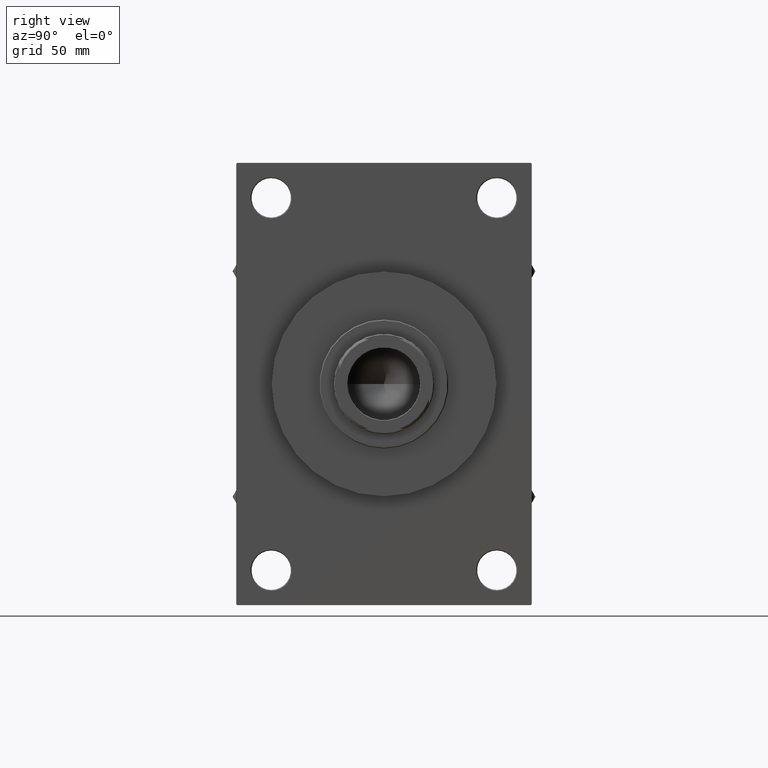
[diagram: clean part render]
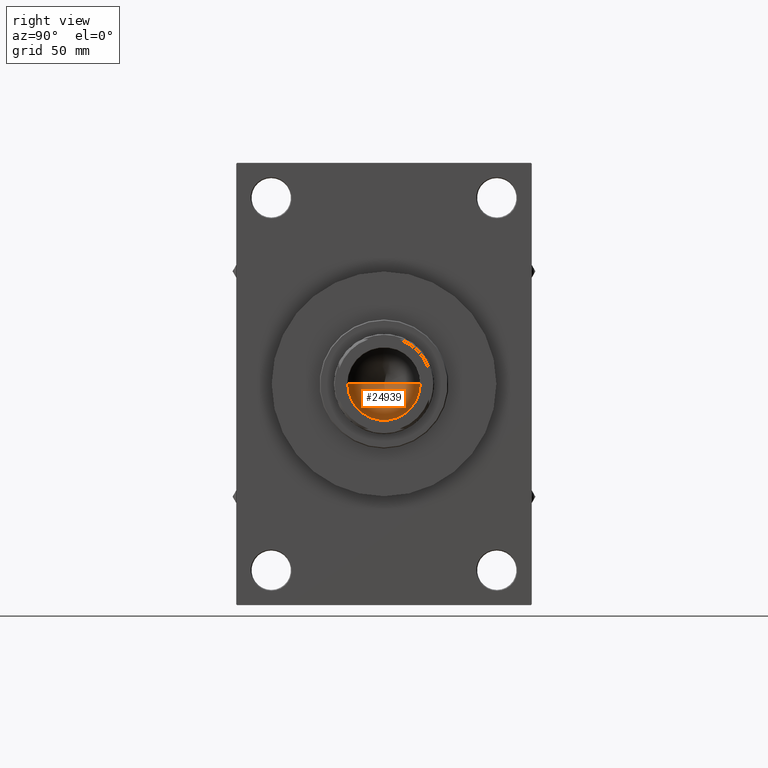
[diagram: same view with one face highlighted and labeled with its STEP entity id]
A machine part, right view. The second image highlights one B-rep face of the part: STEP entity #24939.
In plain terms, the highlighted conical surface has half-angle 59 deg.
Its self-contained STEP definition (entity closure, byte-faithful):
#1752 = CARTESIAN_POINT ( 'NONE',  ( 0.000000000000000000, 0.000000000000000000, 136.0000000000000000 ) ) ;
#1968 = DIRECTION ( 'NONE',  ( 1.000000000000000000, 0.000000000000000000, 0.000000000000000000 ) ) ;
#2598 = CARTESIAN_POINT ( 'NONE',  ( -20.24999999999998934, 2.479909768273389117E-15, 136.0000000000000000 ) ) ;
#3014 = DIRECTION ( 'NONE',  ( 0.8571673007021115565, 0.000000000000000000, 0.5150380749100554878 ) ) ;
#3255 = CARTESIAN_POINT ( 'NONE',  ( 20.24999999999998934, 0.000000000000000000, 136.0000000000000000 ) ) ;
#5207 = AXIS2_PLACEMENT_3D ( 'NONE', #8303, #41920, #1968 ) ;
#8303 = CARTESIAN_POINT ( 'NONE',  ( 0.000000000000000000, 0.000000000000000000, 136.0000000000000000 ) ) ;
#10212 = VERTEX_POINT ( 'NONE', #47195 ) ;
#10348 = CARTESIAN_POINT ( 'NONE',  ( -20.24999999999998934, 2.479909768273389117E-15, 136.0000000000000000 ) ) ;
#14450 = VECTOR ( 'NONE', #3014, 1000.000000000000000 ) ;
#14992 = VERTEX_POINT ( 'NONE', #2598 ) ;
#18995 = ORIENTED_EDGE ( 'NONE', *, *, #22632, .T. ) ;
#20164 = DIRECTION ( 'NONE',  ( 1.000000000000000000, 0.000000000000000000, 0.000000000000000000 ) ) ;
#20957 = EDGE_CURVE ( 'NONE', #26174, #14992, #33103, .T. ) ;
#22115 = LINE ( 'NONE', #3255, #14450 ) ;
#22611 = ORIENTED_EDGE ( 'NONE', *, *, #32216, .T. ) ;
#22632 = EDGE_CURVE ( 'NONE', #26174, #10212, #22115, .T. ) ;
#24939 = ADVANCED_FACE ( 'NONE', ( #35130 ), #43095, .F. ) ;
#26174 = VERTEX_POINT ( 'NONE', #34679 ) ;
#30807 = DIRECTION ( 'NONE',  ( -0.000000000000000000, -0.000000000000000000, 1.000000000000000000 ) ) ;
#32216 = EDGE_CURVE ( 'NONE', #10212, #14992, #37942, .T. ) ;
#32269 = ORIENTED_EDGE ( 'NONE', *, *, #20957, .F. ) ;
#33103 = LINE ( 'NONE', #10348, #40021 ) ;
#34679 = CARTESIAN_POINT ( 'NONE',  ( -1.584115414415908206E-14, 0.000000000000000000, 123.8325724646918786 ) ) ;
#35130 = FACE_OUTER_BOUND ( 'NONE', #37283, .T. ) ;
#37283 = EDGE_LOOP ( 'NONE', ( #32269, #18995, #22611 ) ) ;
#37942 = CIRCLE ( 'NONE', #44112, 20.24999999999998934 ) ;
#40021 = VECTOR ( 'NONE', #40585, 1000.000000000000000 ) ;
#40585 = DIRECTION ( 'NONE',  ( -0.8571673007021115565, 1.049727191138617710E-16, 0.5150380749100554878 ) ) ;
#41920 = DIRECTION ( 'NONE',  ( -0.000000000000000000, -0.000000000000000000, 1.000000000000000000 ) ) ;
#43095 = CONICAL_SURFACE ( 'NONE', #5207, 20.24999999999998934, 1.029744258676652979 ) ;
#44112 = AXIS2_PLACEMENT_3D ( 'NONE', #1752, #30807, #20164 ) ;
#47195 = CARTESIAN_POINT ( 'NONE',  ( 20.24999999999998934, 0.000000000000000000, 136.0000000000000000 ) ) ;